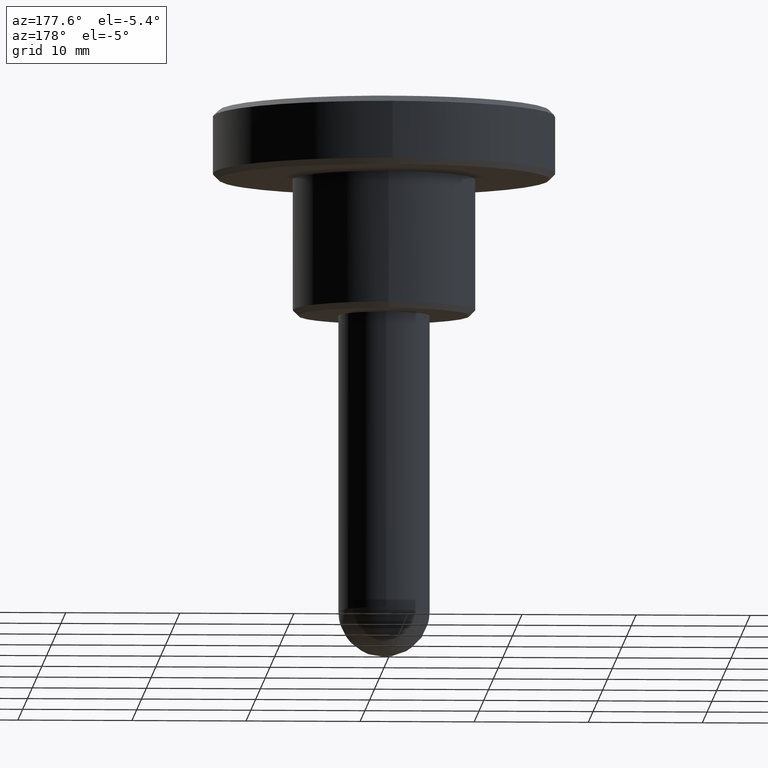
[diagram: clean part render]
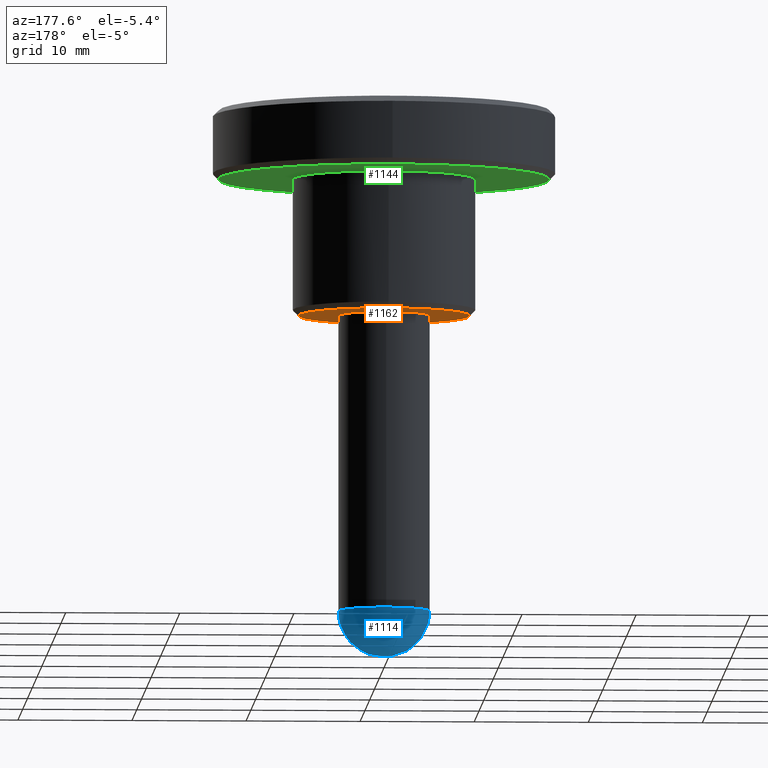
[diagram: same view with three faces highlighted in distinct colors, each labeled with its STEP entity id]
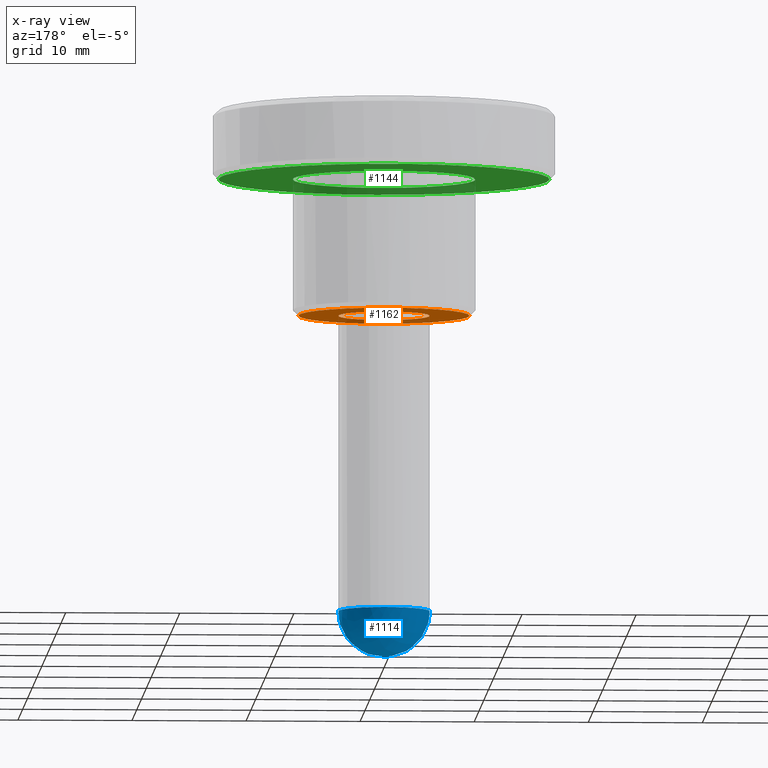
[diagram: x-ray of the same camera — body ghosted, the three highlighted faces saturated]
A machine part, auxiliary view with three faces highlighted in distinct colors.
The next image is the same camera in x-ray (body ghosted, the three faces saturated) — at least one of them is partly hidden behind the body in this view.
Their STEP definitions:

[orange] entity #1162 — the highlighted face is a freeform B-spline surface patch.
#517=CARTESIAN_POINT('',(-3.031615739917708,-6.859978571795589,7.641096E-013));
#518=VERTEX_POINT('',#517);
#524=CARTESIAN_POINT('',(7.500000000000000,0.0,0.0));
#525=VERTEX_POINT('',#524);
#526=CARTESIAN_POINT('',(7.500000000000000,0.0,0.0));
#527=CARTESIAN_POINT('',(7.500000000000000,-7.500000000000000,0.0));
#528=CARTESIAN_POINT('',(0.0,-7.500000000000000,0.0));
#529=CARTESIAN_POINT('',(-1.583367129398663,-7.500000000000000,0.0));
#530=CARTESIAN_POINT('',(-3.031615739917708,-6.859978571795589,7.641096E-013));
#538=(BOUNDED_CURVE()B_SPLINE_CURVE(2,(#526,#527,#528,#529,#530),.UNSPECIFIED.,.F.,.U.)B_SPLINE_CURVE_WITH_KNOTS((3,2,3),(0.500000000000000,0.750000000000000,0.818638421540447),.UNSPECIFIED.)CURVE()GEOMETRIC_REPRESENTATION_ITEM()RATIONAL_B_SPLINE_CURVE((1.0,0.707106781186547,1.0,0.919585087122975,0.883326595751483))REPRESENTATION_ITEM(''));
#539=EDGE_CURVE('',#525,#518,#538,.T.);
#541=CARTESIAN_POINT('',(-0.065449050122102,7.499714436445829,0.000000013759725));
#542=VERTEX_POINT('',#541);
#543=CARTESIAN_POINT('',(-0.065449050122102,7.499714436445829,0.000000013759725));
#544=CARTESIAN_POINT('',(-0.032725164921413,7.500000000000000,0.0));
#545=CARTESIAN_POINT('',(0.0,7.500000000000000,0.0));
#546=CARTESIAN_POINT('',(7.500000000000000,7.500000000000000,0.0));
#547=CARTESIAN_POINT('',(7.500000000000000,0.0,0.0));
#555=(BOUNDED_CURVE()B_SPLINE_CURVE(2,(#543,#544,#545,#546,#547),.UNSPECIFIED.,.F.,.U.)B_SPLINE_CURVE_WITH_KNOTS((3,2,3),(0.248460104078999,0.250000000000000,0.500000000000000),.UNSPECIFIED.)CURVE()GEOMETRIC_REPRESENTATION_ITEM()RATIONAL_B_SPLINE_CURVE((0.996414024429926,0.998195899708242,1.0,0.707106781186547,1.0))REPRESENTATION_ITEM(''));
#556=EDGE_CURVE('',#542,#525,#555,.T.);
#645=CARTESIAN_POINT('',(-7.500000000000000,0.0,0.0));
#646=VERTEX_POINT('',#645);
#647=CARTESIAN_POINT('',(-7.500000000000000,0.0,0.0));
#648=CARTESIAN_POINT('',(-7.500000000000001,7.434834012515537,0.0));
#649=CARTESIAN_POINT('',(-0.065449050122102,7.499714436445829,0.000000013759725));
#657=(BOUNDED_CURVE()B_SPLINE_CURVE(2,(#647,#648,#649),.UNSPECIFIED.,.F.,.U.)B_SPLINE_CURVE_WITH_KNOTS((3,3),(0.0,0.248460104078999),.UNSPECIFIED.)CURVE()GEOMETRIC_REPRESENTATION_ITEM()RATIONAL_B_SPLINE_CURVE((1.0,0.708910881478306,0.996414024429926))REPRESENTATION_ITEM(''));
#658=EDGE_CURVE('',#646,#542,#657,.T.);
#660=CARTESIAN_POINT('',(-3.031615739917708,-6.859978571795588,7.641096E-013));
#661=CARTESIAN_POINT('',(-7.500000000000000,-4.885275019424209,0.0));
#662=CARTESIAN_POINT('',(-7.500000000000000,0.0,0.0));
#670=(BOUNDED_CURVE()B_SPLINE_CURVE(2,(#660,#661,#662),.UNSPECIFIED.,.F.,.U.)B_SPLINE_CURVE_WITH_KNOTS((3,3),(0.818638421540446,1.0),.UNSPECIFIED.)CURVE()GEOMETRIC_REPRESENTATION_ITEM()RATIONAL_B_SPLINE_CURVE((0.883326595751484,0.787521694063571,1.0))REPRESENTATION_ITEM(''));
#671=EDGE_CURVE('',#518,#646,#670,.T.);
#733=CARTESIAN_POINT('',(-0.034906142037407,3.999847692256301,1.665335E-016));
#734=VERTEX_POINT('',#733);
#740=CARTESIAN_POINT('',(4.0,0.0,0.0));
#741=VERTEX_POINT('',#740);
#742=CARTESIAN_POINT('',(-0.034906142037407,3.999847692256302,1.665335E-016));
#743=CARTESIAN_POINT('',(-0.017453403326720,4.000000000000001,0.0));
#744=CARTESIAN_POINT('',(0.0,4.0,0.0));
#745=CARTESIAN_POINT('',(4.000000000000000,4.000000000000000,0.0));
#746=CARTESIAN_POINT('',(4.0,0.0,0.0));
#754=(BOUNDED_CURVE()B_SPLINE_CURVE(2,(#742,#743,#744,#745,#746),.UNSPECIFIED.,.F.,.U.)B_SPLINE_CURVE_WITH_KNOTS((3,2,3),(0.248460105661145,0.250000000000000,0.500000000000000),.UNSPECIFIED.)CURVE()GEOMETRIC_REPRESENTATION_ITEM()RATIONAL_B_SPLINE_CURVE((0.996414028091456,0.998195901561841,1.0,0.707106781186548,1.0))REPRESENTATION_ITEM(''));
#755=EDGE_CURVE('',#734,#741,#754,.T.);
#757=CARTESIAN_POINT('',(0.496507739550946,-3.969065389301050,-1.334283E-015));
#758=VERTEX_POINT('',#757);
#759=CARTESIAN_POINT('',(4.0,0.0,0.0));
#760=CARTESIAN_POINT('',(4.000000000000000,-3.530798227603606,0.0));
#761=CARTESIAN_POINT('',(0.496507739550946,-3.969065389301051,-1.334283E-015));
#769=(BOUNDED_CURVE()B_SPLINE_CURVE(2,(#759,#760,#761),.UNSPECIFIED.,.F.,.U.)B_SPLINE_CURVE_WITH_KNOTS((3,3),(0.500000000000000,0.728526252409665),.UNSPECIFIED.)CURVE()GEOMETRIC_REPRESENTATION_ITEM()RATIONAL_B_SPLINE_CURVE((1.0,0.732264841393431,0.954005782264194))REPRESENTATION_ITEM(''));
#770=EDGE_CURVE('',#741,#758,#769,.T.);
#820=CARTESIAN_POINT('',(-4.0,0.0,0.0));
#821=VERTEX_POINT('',#820);
#822=CARTESIAN_POINT('',(0.496507739550946,-3.969065389301051,-1.334283E-015));
#823=CARTESIAN_POINT('',(0.249217550764576,-4.0,0.0));
#824=CARTESIAN_POINT('',(0.0,-4.0,0.0));
#825=CARTESIAN_POINT('',(-4.000000000000000,-4.000000000000000,0.0));
#826=CARTESIAN_POINT('',(-4.0,0.0,0.0));
#834=(BOUNDED_CURVE()B_SPLINE_CURVE(2,(#822,#823,#824,#825,#826),.UNSPECIFIED.,.F.,.U.)B_SPLINE_CURVE_WITH_KNOTS((3,2,3),(0.728526252409665,0.750000000000000,1.0),.UNSPECIFIED.)CURVE()GEOMETRIC_REPRESENTATION_ITEM()RATIONAL_B_SPLINE_CURVE((0.954005782264194,0.974841939793117,1.0,0.707106781186548,1.0))REPRESENTATION_ITEM(''));
#835=EDGE_CURVE('',#758,#821,#834,.T.);
#837=CARTESIAN_POINT('',(-4.0,0.0,0.0));
#838=CARTESIAN_POINT('',(-4.000000000000001,3.965244842292845,0.0));
#839=CARTESIAN_POINT('',(-0.034906142037407,3.999847692256301,1.665335E-016));
#847=(BOUNDED_CURVE()B_SPLINE_CURVE(2,(#837,#838,#839),.UNSPECIFIED.,.F.,.U.)B_SPLINE_CURVE_WITH_KNOTS((3,3),(0.0,0.248460105661145),.UNSPECIFIED.)CURVE()GEOMETRIC_REPRESENTATION_ITEM()RATIONAL_B_SPLINE_CURVE((1.0,0.708910879624707,0.996414028091455))REPRESENTATION_ITEM(''));
#848=EDGE_CURVE('',#821,#734,#847,.T.);
#1145=CARTESIAN_POINT('',(-8.249249970927089,8.248884432408193,0.0));
#1146=CARTESIAN_POINT('',(8.249250373258443,8.248884432408193,0.0));
#1147=CARTESIAN_POINT('',(-8.249249970927089,-8.247853927704671,0.0));
#1148=CARTESIAN_POINT('',(8.249250373258443,-8.247853927704671,0.0));
#1149=B_SPLINE_SURFACE_WITH_KNOTS('',1,1,((#1145,#1147),(#1146,#1148)),.UNSPECIFIED.,.F.,.F.,.U.,(2,2),(2,2),(0.0,16.498500344185530),(0.0,16.496738360112872),.UNSPECIFIED.);
#1150=ORIENTED_EDGE('',*,*,#658,.T.);
#1151=ORIENTED_EDGE('',*,*,#556,.T.);
#1152=ORIENTED_EDGE('',*,*,#539,.T.);
#1153=ORIENTED_EDGE('',*,*,#671,.T.);
#1154=EDGE_LOOP('',(#1150,#1151,#1152,#1153));
#1155=FACE_OUTER_BOUND('',#1154,.T.);
#1156=ORIENTED_EDGE('',*,*,#848,.F.);
#1157=ORIENTED_EDGE('',*,*,#835,.F.);
#1158=ORIENTED_EDGE('',*,*,#770,.F.);
#1159=ORIENTED_EDGE('',*,*,#755,.F.);
#1160=EDGE_LOOP('',(#1156,#1157,#1158,#1159));
#1161=FACE_BOUND('',#1160,.T.);
#1162=ADVANCED_FACE('',(#1155,#1161),#1149,.T.);

[blue] entity #1114 — the highlighted face is a freeform B-spline surface patch.
#699=CARTESIAN_POINT('',(0.496505897792677,-3.969065619691763,-26.000000000000011));
#700=VERTEX_POINT('',#699);
#701=CARTESIAN_POINT('',(4.0,0.0,-26.0));
#702=VERTEX_POINT('',#701);
#703=CARTESIAN_POINT('',(0.496505897792677,-3.969065619691764,-26.000000000000014));
#704=CARTESIAN_POINT('',(4.000000000000001,-3.530799878763064,-26.0));
#705=CARTESIAN_POINT('',(4.0,0.0,-26.0));
#713=(BOUNDED_CURVE()B_SPLINE_CURVE(2,(#703,#704,#705),.UNSPECIFIED.,.F.,.U.)B_SPLINE_CURVE_WITH_KNOTS((3,3),(0.771473669333849,1.0),.UNSPECIFIED.)CURVE()GEOMETRIC_REPRESENTATION_ITEM()RATIONAL_B_SPLINE_CURVE((0.954005934130101,0.732264749710255,1.0))REPRESENTATION_ITEM(''));
#714=EDGE_CURVE('',#700,#702,#713,.T.);
#716=CARTESIAN_POINT('',(-0.034906142044346,3.999847692256241,-26.0));
#717=VERTEX_POINT('',#716);
#718=CARTESIAN_POINT('',(4.0,0.0,-26.0));
#719=CARTESIAN_POINT('',(4.000000000000000,4.000000000000000,-26.000000000000004));
#720=CARTESIAN_POINT('',(0.0,4.0,-26.0));
#721=CARTESIAN_POINT('',(-0.017453403333660,4.000000000000001,-26.0));
#722=CARTESIAN_POINT('',(-0.034906142044346,3.999847692256241,-26.0));
#730=(BOUNDED_CURVE()B_SPLINE_CURVE(2,(#718,#719,#720,#721,#722),.UNSPECIFIED.,.F.,.U.)B_SPLINE_CURVE_WITH_KNOTS((3,2,3),(0.0,0.250000000000000,0.251539894339466),.UNSPECIFIED.)CURVE()GEOMETRIC_REPRESENTATION_ITEM()RATIONAL_B_SPLINE_CURVE((1.0,0.707106781186548,1.0,0.998195901561125,0.996414028090041))REPRESENTATION_ITEM(''));
#731=EDGE_CURVE('',#702,#717,#730,.T.);
#802=CARTESIAN_POINT('',(-4.0,0.0,-26.0));
#803=VERTEX_POINT('',#802);
#804=CARTESIAN_POINT('',(-4.0,0.0,-26.0));
#805=CARTESIAN_POINT('',(-4.000000000000000,-4.000000000000000,-26.000000000000004));
#806=CARTESIAN_POINT('',(0.0,-4.0,-26.0));
#807=CARTESIAN_POINT('',(0.249216619105805,-4.000000000000001,-25.999999999999996));
#808=CARTESIAN_POINT('',(0.496505897792677,-3.969065619691764,-26.000000000000014));
#816=(BOUNDED_CURVE()B_SPLINE_CURVE(2,(#804,#805,#806,#807,#808),.UNSPECIFIED.,.F.,.U.)B_SPLINE_CURVE_WITH_KNOTS((3,2,3),(0.500000000000000,0.750000000000000,0.771473669333849),.UNSPECIFIED.)CURVE()GEOMETRIC_REPRESENTATION_ITEM()RATIONAL_B_SPLINE_CURVE((1.0,0.707106781186548,1.0,0.974842031476293,0.954005934130101))REPRESENTATION_ITEM(''));
#817=EDGE_CURVE('',#803,#700,#816,.T.);
#851=CARTESIAN_POINT('',(-0.034906142044346,3.999847692256241,-25.999999999999996));
#852=CARTESIAN_POINT('',(-4.0,3.965244842279088,-26.000000000000004));
#853=CARTESIAN_POINT('',(-4.0,0.0,-26.0));
#861=(BOUNDED_CURVE()B_SPLINE_CURVE(2,(#851,#852,#853),.UNSPECIFIED.,.F.,.U.)B_SPLINE_CURVE_WITH_KNOTS((3,3),(0.251539894339466,0.500000000000000),.UNSPECIFIED.)CURVE()GEOMETRIC_REPRESENTATION_ITEM()RATIONAL_B_SPLINE_CURVE((0.996414028090041,0.708910879625423,1.0))REPRESENTATION_ITEM(''));
#862=EDGE_CURVE('',#717,#803,#861,.T.);
#1064=CARTESIAN_POINT('',(-2.622022120425376,2.622022120425378,-24.499999999999996));
#1065=CARTESIAN_POINT('',(-2.374661543026756,3.166215390702343,-25.018867924528298));
#1066=CARTESIAN_POINT('',(-0.998865569685859,3.995462278743434,-25.809523809523814));
#1067=CARTESIAN_POINT('',(0.998865569685859,3.995462278743434,-25.809523809523814));
#1068=CARTESIAN_POINT('',(2.374661543026757,3.166215390702343,-25.018867924528301));
#1069=CARTESIAN_POINT('',(2.622022120425378,2.622022120425378,-24.499999999999996));
#1070=CARTESIAN_POINT('',(-3.166215390702342,2.374661543026757,-25.018867924528298));
#1071=CARTESIAN_POINT('',(-2.996596709057575,2.996596709057575,-25.809523809523807));
#1072=CARTESIAN_POINT('',(-1.353301739574390,4.059905218723166,-27.161290322580644));
#1073=CARTESIAN_POINT('',(1.353301739574388,4.059905218723166,-27.161290322580644));
#1074=CARTESIAN_POINT('',(2.996596709057575,2.996596709057575,-25.809523809523814));
#1075=CARTESIAN_POINT('',(3.166215390702343,2.374661543026757,-25.018867924528301));
#1076=CARTESIAN_POINT('',(-3.995462278743434,0.998865569685858,-25.809523809523807));
#1077=CARTESIAN_POINT('',(-4.059905218723166,1.353301739574388,-27.161290322580633));
#1078=CARTESIAN_POINT('',(-2.097617696340307,2.097617696340303,-30.0));
#1079=CARTESIAN_POINT('',(2.097617696340302,2.097617696340303,-30.0));
#1080=CARTESIAN_POINT('',(4.059905218723165,1.353301739574388,-27.161290322580644));
#1081=CARTESIAN_POINT('',(3.995462278743434,0.998865569685858,-25.809523809523814));
#1082=CARTESIAN_POINT('',(-3.995462278743434,-0.998865569685858,-25.809523809523807));
#1083=CARTESIAN_POINT('',(-4.059905218723166,-1.353301739574388,-27.161290322580633));
#1084=CARTESIAN_POINT('',(-2.097617696340307,-2.097617696340303,-30.0));
#1085=CARTESIAN_POINT('',(2.097617696340302,-2.097617696340303,-30.0));
#1086=CARTESIAN_POINT('',(4.059905218723165,-1.353301739574388,-27.161290322580644));
#1087=CARTESIAN_POINT('',(3.995462278743434,-0.998865569685858,-25.809523809523814));
#1088=CARTESIAN_POINT('',(-3.166215390702342,-2.374661543026757,-25.018867924528298));
#1089=CARTESIAN_POINT('',(-2.996596709057575,-2.996596709057575,-25.809523809523807));
#1090=CARTESIAN_POINT('',(-1.353301739574390,-4.059905218723166,-27.161290322580644));
#1091=CARTESIAN_POINT('',(1.353301739574388,-4.059905218723166,-27.161290322580644));
#1092=CARTESIAN_POINT('',(2.996596709057575,-2.996596709057575,-25.809523809523814));
#1093=CARTESIAN_POINT('',(3.166215390702343,-2.374661543026757,-25.018867924528301));
#1094=CARTESIAN_POINT('',(-2.622022120425376,-2.622022120425378,-24.499999999999996));
#1095=CARTESIAN_POINT('',(-2.374661543026756,-3.166215390702343,-25.018867924528298));
#1096=CARTESIAN_POINT('',(-0.998865569685859,-3.995462278743434,-25.809523809523814));
#1097=CARTESIAN_POINT('',(0.998865569685859,-3.995462278743434,-25.809523809523814));
#1098=CARTESIAN_POINT('',(2.374661543026757,-3.166215390702343,-25.018867924528301));
#1099=CARTESIAN_POINT('',(2.622022120425378,-2.622022120425378,-24.499999999999996));
#1107=(BOUNDED_SURFACE()B_SPLINE_SURFACE(2,2,((#1064,#1070,#1076,#1082,#1088,#1094),(#1065,#1071,#1077,#1083,#1089,#1095),(#1066,#1072,#1078,#1084,#1090,#1096),(#1067,#1073,#1079,#1085,#1091,#1097),(#1068,#1074,#1080,#1086,#1092,#1098),(#1069,#1075,#1081,#1087,#1093,#1099)),.UNSPECIFIED.,.F.,.F.,.U.)B_SPLINE_SURFACE_WITH_KNOTS((3,1,1,1,3),(3,1,1,1,3),(0.0,3.688119026532403,7.376238053064806,11.064357079597210,14.752476106129610),(0.0,3.688119026532405,7.376238053064810,11.064357079597221,14.752476106129620),.UNSPECIFIED.)GEOMETRIC_REPRESENTATION_ITEM()RATIONAL_B_SPLINE_SURFACE(((3.200000000000003,2.650000000000002,2.100000000000001,2.100000000000001,2.650000000000002,3.200000000000003),(2.650000000000002,2.100000000000001,1.550000000000001,1.550000000000001,2.100000000000001,2.650000000000002),(2.100000000000001,1.550000000000001,1.0,1.0,1.550000000000001,2.100000000000001),(2.100000000000001,1.550000000000001,1.0,1.0,1.550000000000001,2.100000000000001),(2.650000000000002,2.100000000000001,1.550000000000001,1.550000000000001,2.100000000000001,2.650000000000002),(3.200000000000003,2.650000000000002,2.100000000000001,2.100000000000001,2.650000000000002,3.200000000000003)))REPRESENTATION_ITEM('')SURFACE());
#1108=ORIENTED_EDGE('',*,*,#714,.F.);
#1109=ORIENTED_EDGE('',*,*,#817,.F.);
#1110=ORIENTED_EDGE('',*,*,#862,.F.);
#1111=ORIENTED_EDGE('',*,*,#731,.F.);
#1112=EDGE_LOOP('',(#1108,#1109,#1110,#1111));
#1113=FACE_OUTER_BOUND('',#1112,.T.);
#1114=ADVANCED_FACE('',(#1113),#1107,.T.);

[green] entity #1144 — the highlighted face is a freeform B-spline surface patch.
#286=CARTESIAN_POINT('',(14.500000000000000,0.0,12.0));
#287=VERTEX_POINT('',#286);
#288=CARTESIAN_POINT('',(11.873558634299050,-8.322776301083717,12.000000000000639));
#289=VERTEX_POINT('',#288);
#290=CARTESIAN_POINT('',(14.500000000000000,0.0,12.0));
#291=CARTESIAN_POINT('',(14.499999999999998,-4.575804806598277,11.999999999999998));
#292=CARTESIAN_POINT('',(11.873558634299053,-8.322776301083717,12.000000000000636));
#300=(BOUNDED_CURVE()B_SPLINE_CURVE(2,(#290,#291,#292),.UNSPECIFIED.,.F.,.U.)B_SPLINE_CURVE_WITH_KNOTS((3,3),(0.0,0.098673726203185),.UNSPECIFIED.)CURVE()GEOMETRIC_REPRESENTATION_ITEM()RATIONAL_B_SPLINE_CURVE((1.0,0.884396538880128,0.860049271925718))REPRESENTATION_ITEM(''));
#301=EDGE_CURVE('',#287,#289,#300,.T.);
#303=CARTESIAN_POINT('',(-14.500000000000000,0.0,12.0));
#304=VERTEX_POINT('',#303);
#305=CARTESIAN_POINT('',(-14.500000000000000,0.0,12.0));
#306=CARTESIAN_POINT('',(-14.500000000000000,14.500000000000000,12.0));
#307=CARTESIAN_POINT('',(0.0,14.500000000000000,12.0));
#308=CARTESIAN_POINT('',(14.500000000000000,14.500000000000000,12.0));
#309=CARTESIAN_POINT('',(14.500000000000000,0.0,12.0));
#317=(BOUNDED_CURVE()B_SPLINE_CURVE(2,(#305,#306,#307,#308,#309),.UNSPECIFIED.,.F.,.U.)B_SPLINE_CURVE_WITH_KNOTS((3,2,3),(0.500000000000000,0.750000000000000,1.0),.UNSPECIFIED.)CURVE()GEOMETRIC_REPRESENTATION_ITEM()RATIONAL_B_SPLINE_CURVE((1.0,0.707106781186548,1.0,0.707106781186548,1.0))REPRESENTATION_ITEM(''));
#318=EDGE_CURVE('',#304,#287,#317,.T.);
#320=CARTESIAN_POINT('',(0.126534764776619,-14.499447884436870,12.000000000006819));
#321=VERTEX_POINT('',#320);
#322=CARTESIAN_POINT('',(0.126534764776619,-14.499447884436869,12.000000000006825));
#323=CARTESIAN_POINT('',(0.063268586950314,-14.499999999999998,12.000000000000002));
#324=CARTESIAN_POINT('',(0.0,-14.500000000000000,12.0));
#325=CARTESIAN_POINT('',(-14.500000000000000,-14.500000000000000,12.0));
#326=CARTESIAN_POINT('',(-14.500000000000000,0.0,12.0));
#334=(BOUNDED_CURVE()B_SPLINE_CURVE(2,(#322,#323,#324,#325,#326),.UNSPECIFIED.,.F.,.U.)B_SPLINE_CURVE_WITH_KNOTS((3,2,3),(0.248460105663795,0.250000000000000,0.500000000000000),.UNSPECIFIED.)CURVE()GEOMETRIC_REPRESENTATION_ITEM()RATIONAL_B_SPLINE_CURVE((0.996414028097587,0.998195901564945,1.0,0.707106781186548,1.0))REPRESENTATION_ITEM(''));
#335=EDGE_CURVE('',#321,#304,#334,.T.);
#430=CARTESIAN_POINT('',(11.873558634299057,-8.322776301083717,12.000000000000638));
#431=CARTESIAN_POINT('',(7.589670654117511,-14.434318084167678,12.0));
#432=CARTESIAN_POINT('',(0.126534764776619,-14.499447884436863,12.000000000006821));
#440=(BOUNDED_CURVE()B_SPLINE_CURVE(2,(#430,#431,#432),.UNSPECIFIED.,.F.,.U.)B_SPLINE_CURVE_WITH_KNOTS((3,3),(0.098673726203185,0.248460105663795),.UNSPECIFIED.)CURVE()GEOMETRIC_REPRESENTATION_ITEM()RATIONAL_B_SPLINE_CURVE((0.860049271925718,0.823090203821281,0.996414028097586))REPRESENTATION_ITEM(''));
#441=EDGE_CURVE('',#289,#321,#440,.T.);
#887=CARTESIAN_POINT('',(-0.069811257577024,7.999695393470582,12.0));
#888=VERTEX_POINT('',#887);
#894=CARTESIAN_POINT('',(8.0,0.0,12.0));
#895=VERTEX_POINT('',#894);
#896=CARTESIAN_POINT('',(-0.069811257577024,7.999695393470582,11.999999999999998));
#897=CARTESIAN_POINT('',(-0.034906293331316,8.0,12.000000000000002));
#898=CARTESIAN_POINT('',(0.0,8.0,12.0));
#899=CARTESIAN_POINT('',(8.0,8.0,12.0));
#900=CARTESIAN_POINT('',(8.0,0.0,12.0));
#908=(BOUNDED_CURVE()B_SPLINE_CURVE(2,(#896,#897,#898,#899,#900),.UNSPECIFIED.,.F.,.U.)B_SPLINE_CURVE_WITH_KNOTS((3,2,3),(0.248460128265212,0.250000000000000,0.500000000000000),.UNSPECIFIED.)CURVE()GEOMETRIC_REPRESENTATION_ITEM()RATIONAL_B_SPLINE_CURVE((0.996414080403603,0.998195928044152,1.0,0.707106781186548,1.0))REPRESENTATION_ITEM(''));
#909=EDGE_CURVE('',#888,#895,#908,.T.);
#911=CARTESIAN_POINT('',(0.993015708576855,-7.938130749896319,12.0));
#912=VERTEX_POINT('',#911);
#913=CARTESIAN_POINT('',(8.0,0.0,12.0));
#914=CARTESIAN_POINT('',(8.0,-7.061596249480050,12.0));
#915=CARTESIAN_POINT('',(0.993015708576855,-7.938130749896319,11.999999999999996));
#923=(BOUNDED_CURVE()B_SPLINE_CURVE(2,(#913,#914,#915),.UNSPECIFIED.,.F.,.U.)B_SPLINE_CURVE_WITH_KNOTS((3,3),(0.500000000000000,0.728526247534458),.UNSPECIFIED.)CURVE()GEOMETRIC_REPRESENTATION_ITEM()RATIONAL_B_SPLINE_CURVE((1.0,0.732264847105091,0.954005772803286))REPRESENTATION_ITEM(''));
#924=EDGE_CURVE('',#895,#912,#923,.T.);
#959=CARTESIAN_POINT('',(-8.0,0.0,12.0));
#960=VERTEX_POINT('',#959);
#961=CARTESIAN_POINT('',(0.993015708576855,-7.938130749896319,11.999999999999996));
#962=CARTESIAN_POINT('',(0.498435217609738,-8.0,12.0));
#963=CARTESIAN_POINT('',(0.0,-8.0,12.0));
#964=CARTESIAN_POINT('',(-8.0,-8.0,12.0));
#965=CARTESIAN_POINT('',(-8.0,0.0,12.0));
#973=(BOUNDED_CURVE()B_SPLINE_CURVE(2,(#961,#962,#963,#964,#965),.UNSPECIFIED.,.F.,.U.)B_SPLINE_CURVE_WITH_KNOTS((3,2,3),(0.728526247534458,0.750000000000000,1.0),.UNSPECIFIED.)CURVE()GEOMETRIC_REPRESENTATION_ITEM()RATIONAL_B_SPLINE_CURVE((0.954005772803286,0.974841934081457,1.0,0.707106781186548,1.0))REPRESENTATION_ITEM(''));
#974=EDGE_CURVE('',#912,#960,#973,.T.);
#976=CARTESIAN_POINT('',(-8.0,0.0,12.0));
#977=CARTESIAN_POINT('',(-8.0,7.930490702329087,12.0));
#978=CARTESIAN_POINT('',(-0.069811257577024,7.999695393470582,11.999999999999998));
#986=(BOUNDED_CURVE()B_SPLINE_CURVE(2,(#976,#977,#978),.UNSPECIFIED.,.F.,.U.)B_SPLINE_CURVE_WITH_KNOTS((3,3),(0.0,0.248460128265212),.UNSPECIFIED.)CURVE()GEOMETRIC_REPRESENTATION_ITEM()RATIONAL_B_SPLINE_CURVE((1.0,0.708910853142395,0.996414080403603))REPRESENTATION_ITEM(''));
#987=EDGE_CURVE('',#960,#888,#986,.T.);
#1127=CARTESIAN_POINT('',(-15.948549943792370,-15.947970363458980,12.0));
#1128=CARTESIAN_POINT('',(15.948550721632991,-15.947970363458980,12.0));
#1129=CARTESIAN_POINT('',(-15.948549943792370,15.948523148855561,12.0));
#1130=CARTESIAN_POINT('',(15.948550721632991,15.948523148855561,12.0));
#1131=B_SPLINE_SURFACE_WITH_KNOTS('',1,1,((#1127,#1129),(#1128,#1130)),.UNSPECIFIED.,.F.,.F.,.U.,(2,2),(2,2),(0.0,31.897100665425359),(0.0,31.896493512314539),.UNSPECIFIED.);
#1132=ORIENTED_EDGE('',*,*,#301,.T.);
#1133=ORIENTED_EDGE('',*,*,#441,.T.);
#1134=ORIENTED_EDGE('',*,*,#335,.T.);
#1135=ORIENTED_EDGE('',*,*,#318,.T.);
#1136=EDGE_LOOP('',(#1132,#1133,#1134,#1135));
#1137=FACE_OUTER_BOUND('',#1136,.T.);
#1138=ORIENTED_EDGE('',*,*,#987,.F.);
#1139=ORIENTED_EDGE('',*,*,#974,.F.);
#1140=ORIENTED_EDGE('',*,*,#924,.F.);
#1141=ORIENTED_EDGE('',*,*,#909,.F.);
#1142=EDGE_LOOP('',(#1138,#1139,#1140,#1141));
#1143=FACE_BOUND('',#1142,.T.);
#1144=ADVANCED_FACE('',(#1137,#1143),#1131,.F.);